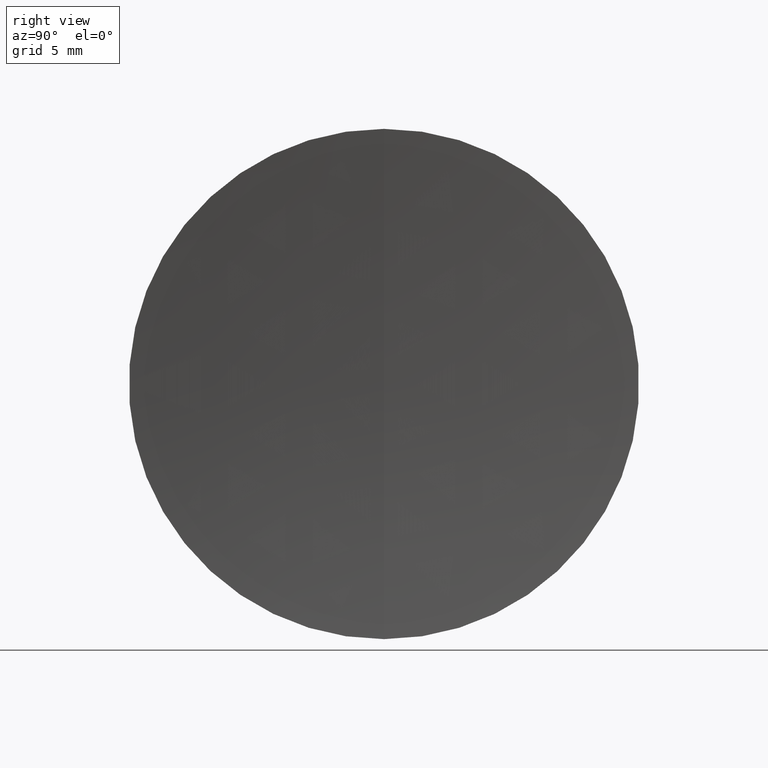
[diagram: clean part render]
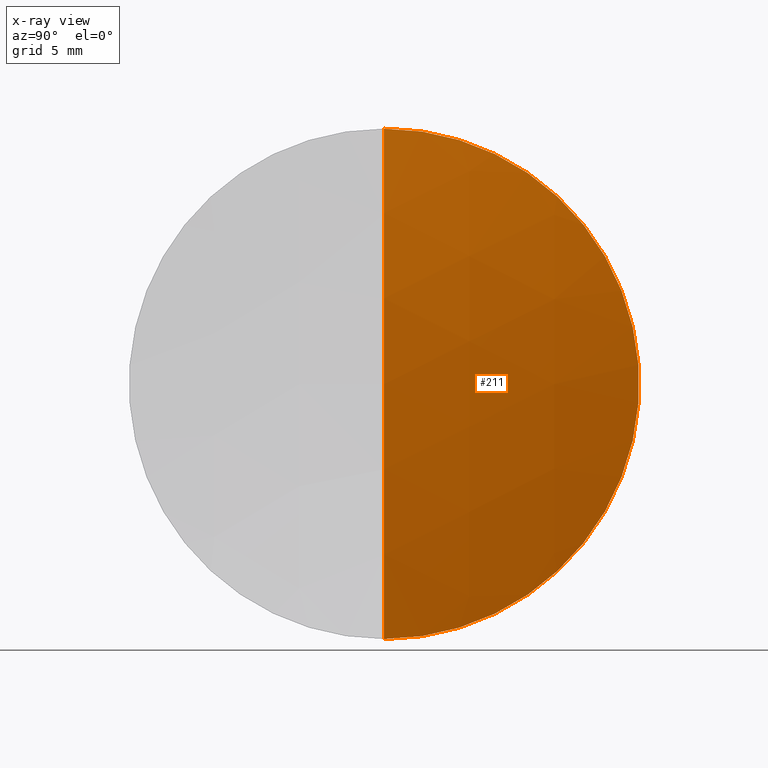
[diagram: x-ray — body ghosted, one internal face saturated and labeled with its STEP entity id]
A machine part, right view, then the same camera in x-ray: the body is ghosted and one INTERNAL B-rep face — a face not visible from any outside direction — is saturated and labeled: STEP entity #211.
In plain terms, the highlighted spherical surface has radius 65.31 mm.
Its self-contained STEP definition (entity closure, byte-faithful):
#4 = ORIENTED_EDGE ( 'NONE', *, *, #176, .F. ) ;
#11 = CIRCLE ( 'NONE', #113, 12.70000000000000600 ) ;
#54 = EDGE_LOOP ( 'NONE', ( #4, #273, #122 ) ) ;
#95 = CARTESIAN_POINT ( 'NONE',  ( 335.1955762872631200, 1.555301434917139200E-015, -12.70000000000000600 ) ) ;
#98 = CARTESIAN_POINT ( 'NONE',  ( 271.1322786824721900, 0.0000000000000000000, 9.096336103793295000E-015 ) ) ;
#107 = VERTEX_POINT ( 'NONE', #95 ) ;
#108 = DIRECTION ( 'NONE',  ( -1.000000000000000000, -0.0000000000000000000, -0.0000000000000000000 ) ) ;
#111 = FACE_OUTER_BOUND ( 'NONE', #54, .T. ) ;
#113 = AXIS2_PLACEMENT_3D ( 'NONE', #266, #108, #294 ) ;
#122 = ORIENTED_EDGE ( 'NONE', *, *, #280, .F. ) ;
#127 = DIRECTION ( 'NONE',  ( 0.0000000000000000000, -1.000000000000000000, 0.0000000000000000000 ) ) ;
#129 = CARTESIAN_POINT ( 'NONE',  ( 335.1955762872631200, 0.0000000000000000000, 12.70000000000000600 ) ) ;
#131 = CARTESIAN_POINT ( 'NONE',  ( 271.1322786824721900, 0.0000000000000000000, 9.096336103793295000E-015 ) ) ;
#149 = DIRECTION ( 'NONE',  ( 0.0000000000000000000, -1.224646799147353200E-016, 1.000000000000000000 ) ) ;
#153 = CIRCLE ( 'NONE', #333, 65.31000000000005900 ) ;
#176 = EDGE_CURVE ( 'NONE', #281, #215, #332, .T. ) ;
#211 = ADVANCED_FACE ( 'NONE', ( #111 ), #242, .T. ) ;
#215 = VERTEX_POINT ( 'NONE', #129 ) ;
#222 = EDGE_CURVE ( 'NONE', #281, #107, #153, .T. ) ;
#242 = SPHERICAL_SURFACE ( 'NONE', #278, 65.31000000000005900 ) ;
#263 = AXIS2_PLACEMENT_3D ( 'NONE', #283, #127, #312 ) ;
#266 = CARTESIAN_POINT ( 'NONE',  ( 335.1955762872631200, 0.0000000000000000000, 0.0000000000000000000 ) ) ;
#273 = ORIENTED_EDGE ( 'NONE', *, *, #222, .T. ) ;
#278 = AXIS2_PLACEMENT_3D ( 'NONE', #98, #284, #313 ) ;
#280 = EDGE_CURVE ( 'NONE', #215, #107, #11, .T. ) ;
#281 = VERTEX_POINT ( 'NONE', #317 ) ;
#283 = CARTESIAN_POINT ( 'NONE',  ( 271.1322786824721900, 0.0000000000000000000, 9.096336103793295000E-015 ) ) ;
#284 = DIRECTION ( 'NONE',  ( 0.0000000000000000000, 1.000000000000000000, 0.0000000000000000000 ) ) ;
#294 = DIRECTION ( 'NONE',  ( 0.0000000000000000000, 0.0000000000000000000, 1.000000000000000000 ) ) ;
#312 = DIRECTION ( 'NONE',  ( 0.0000000000000000000, 0.0000000000000000000, -1.000000000000000000 ) ) ;
#313 = DIRECTION ( 'NONE',  ( 0.0000000000000000000, 0.0000000000000000000, 1.000000000000000000 ) ) ;
#314 = DIRECTION ( 'NONE',  ( -0.0000000000000000000, 1.000000000000000000, 1.224646799147353200E-016 ) ) ;
#317 = CARTESIAN_POINT ( 'NONE',  ( 336.4422786824722500, 0.0000000000000000000, 1.309542022640897900E-014 ) ) ;
#332 = CIRCLE ( 'NONE', #263, 65.31000000000005900 ) ;
#333 = AXIS2_PLACEMENT_3D ( 'NONE', #131, #314, #149 ) ;